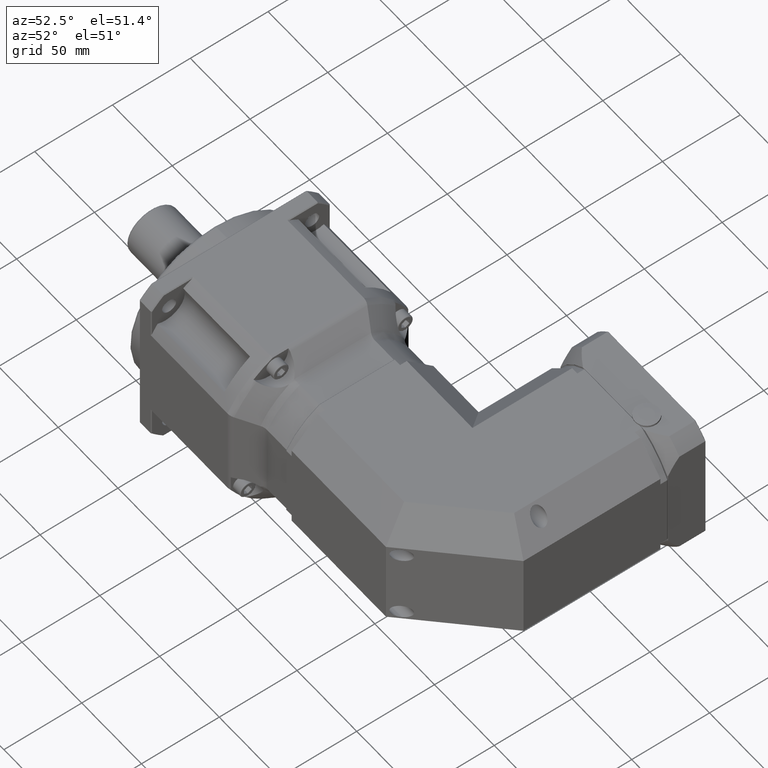
[diagram: clean part render]
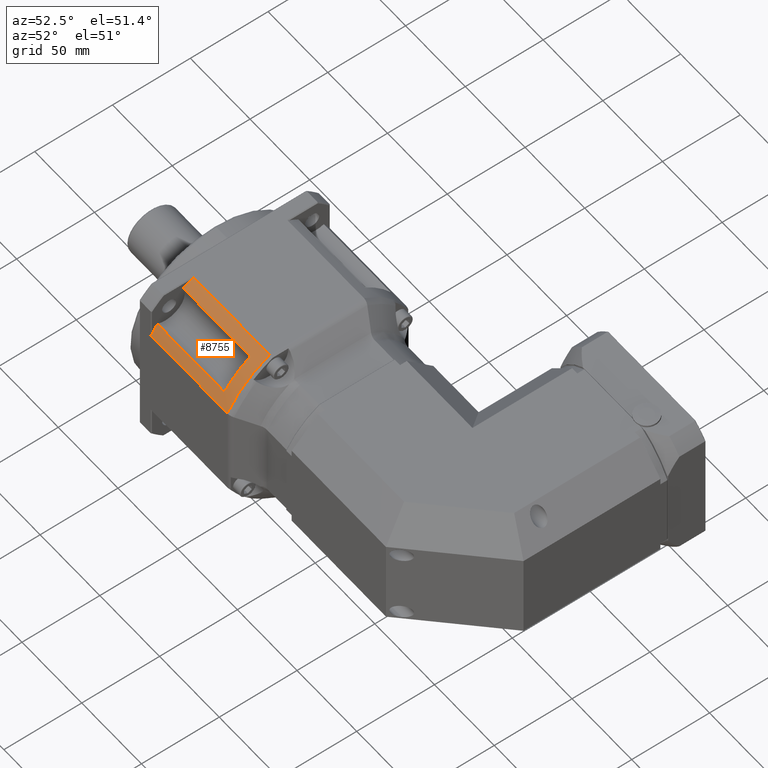
[diagram: same view with one face highlighted and labeled with its STEP entity id]
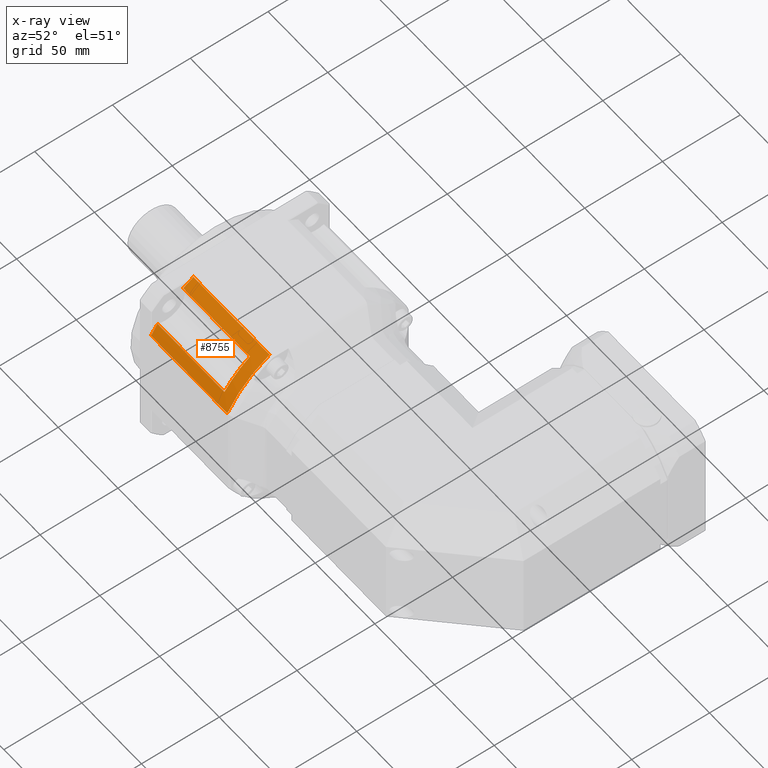
[diagram: x-ray of the same camera — body ghosted, the highlighted face saturated]
A machine part, auxiliary view. The second image highlights one B-rep face of the part: STEP entity #8755.
The next image is the same camera in x-ray: the body ghosted, the highlighted face saturated — about 0% of this face is hidden behind the body in this view.
In plain terms, the highlighted cylindrical surface (partial cylindrical patch) has radius 65 mm, axis along (-1, 0, 0).
Its self-contained STEP definition (entity closure, byte-faithful):
#62=B_SPLINE_CURVE_WITH_KNOTS('',3,(#13985,#13986,#13987,#13988,#13989),
 .UNSPECIFIED.,.F.,.F.,(4,1,4),(-0.00278572342313034,2.05708501763056,3.60042614189197),
 .UNSPECIFIED.);
#176=ELLIPSE('',#9566,91.9238815542512,65.);
#177=ELLIPSE('',#9567,91.923881554252,65.);
#439=LINE('',#13874,#902);
#461=LINE('',#13978,#924);
#462=LINE('',#13984,#925);
#463=LINE('',#13995,#926);
#902=VECTOR('',#11073,64.261255285636);
#924=VECTOR('',#11135,56.);
#925=VECTOR('',#11140,64.261255285636);
#926=VECTOR('',#11145,56.);
#2089=CYLINDRICAL_SURFACE('',#9564,65.);
#2397=FACE_OUTER_BOUND('',#3087,.T.);
#3087=EDGE_LOOP('',(#6740,#6741,#6742,#6743,#6744,#6745,#6746,#6747,#6748,
#6749));
#3779=CIRCLE('',#9565,65.);
#3780=CIRCLE('',#9568,65.);
#3781=CIRCLE('',#9569,65.);
#4288=VERTEX_POINT('',#13872);
#4289=VERTEX_POINT('',#13873);
#4324=VERTEX_POINT('',#13976);
#4325=VERTEX_POINT('',#13977);
#4326=VERTEX_POINT('',#13979);
#4327=VERTEX_POINT('',#13981);
#4328=VERTEX_POINT('',#13983);
#4329=VERTEX_POINT('',#13990);
#4330=VERTEX_POINT('',#13992);
#4331=VERTEX_POINT('',#13994);
#5198=EDGE_CURVE('',#4288,#4289,#439,.T.);
#5240=EDGE_CURVE('',#4324,#4325,#461,.T.);
#5241=EDGE_CURVE('',#4325,#4326,#3779,.T.);
#5242=EDGE_CURVE('',#4327,#4326,#176,.F.);
#5243=EDGE_CURVE('',#4328,#4327,#462,.T.);
#5244=EDGE_CURVE('',#4289,#4328,#62,.T.);
#5245=EDGE_CURVE('',#4329,#4288,#177,.F.);
#5246=EDGE_CURVE('',#4329,#4330,#3780,.T.);
#5247=EDGE_CURVE('',#4330,#4331,#463,.T.);
#5248=EDGE_CURVE('',#4324,#4331,#3781,.T.);
#6740=ORIENTED_EDGE('',*,*,#5240,.T.);
#6741=ORIENTED_EDGE('',*,*,#5241,.T.);
#6742=ORIENTED_EDGE('',*,*,#5242,.F.);
#6743=ORIENTED_EDGE('',*,*,#5243,.F.);
#6744=ORIENTED_EDGE('',*,*,#5244,.F.);
#6745=ORIENTED_EDGE('',*,*,#5198,.F.);
#6746=ORIENTED_EDGE('',*,*,#5245,.F.);
#6747=ORIENTED_EDGE('',*,*,#5246,.T.);
#6748=ORIENTED_EDGE('',*,*,#5247,.T.);
#6749=ORIENTED_EDGE('',*,*,#5248,.F.);
#8755=ADVANCED_FACE('',(#2397),#2089,.T.);
#9564=AXIS2_PLACEMENT_3D('',#13975,#11133,#11134);
#9565=AXIS2_PLACEMENT_3D('',#13980,#11136,#11137);
#9566=AXIS2_PLACEMENT_3D('',#13982,#11138,#11139);
#9567=AXIS2_PLACEMENT_3D('',#13991,#11141,#11142);
#9568=AXIS2_PLACEMENT_3D('',#13993,#11143,#11144);
#9569=AXIS2_PLACEMENT_3D('',#13996,#11146,#11147);
#11073=DIRECTION('',(1.,-3.12250225675824E-16,-7.28688222839997E-17));
#11133=DIRECTION('center_axis',(-1.,3.12250225675824E-16,7.28688222839997E-17));
#11134=DIRECTION('ref_axis',(7.28688222839994E-17,-6.55725473919233E-16,
1.));
#11135=DIRECTION('',(-1.,3.12250225675824E-16,7.28688222839997E-17));
#11136=DIRECTION('center_axis',(1.,-3.12250225675824E-16,-7.28688222839997E-17));
#11137=DIRECTION('ref_axis',(7.28688222839994E-17,-6.55725473919233E-16,
1.));
#11138=DIRECTION('center_axis',(0.707106781186547,-0.707106781186548,-5.15193967579146E-16));
#11139=DIRECTION('ref_axis',(0.707106781186548,0.707106781186547,4.12141890830959E-16));
#11140=DIRECTION('',(-1.,3.12250225675824E-16,7.28688222839997E-17));
#11141=DIRECTION('center_axis',(0.707106781186541,-7.39074092813853E-16,
0.707106781186554));
#11142=DIRECTION('ref_axis',(-0.707106781186554,-2.42873677202642E-16,0.707106781186541));
#11143=DIRECTION('center_axis',(1.,-3.12250225675824E-16,-7.28688222839997E-17));
#11144=DIRECTION('ref_axis',(7.28688222839994E-17,-6.55725473919233E-16,
1.));
#11145=DIRECTION('',(1.,-3.12250225675824E-16,-7.28688222839997E-17));
#11146=DIRECTION('center_axis',(-1.,-7.30465753510197E-16,7.28688222839997E-17));
#11147=DIRECTION('ref_axis',(-7.28688222840003E-17,8.02309607639273E-16,
-1.));
#13872=CARTESIAN_POINT('',(-109.814563485638,5.74993286992617,135.875721489125));
#13873=CARTESIAN_POINT('',(-45.5533082000025,5.74993286992604,135.875721489125));
#13874=CARTESIAN_POINT('',(-53.3145634856383,5.74993286992616,135.875721489125));
#13975=CARTESIAN_POINT('Origin',(-53.3145634856383,36.0608220023815,78.375721489125));
#13976=CARTESIAN_POINT('',(-53.3145634856383,-17.3900612411021,115.362247150391));
#13977=CARTESIAN_POINT('',(-109.314563485638,-17.3900612411021,115.362247150391));
#13978=CARTESIAN_POINT('',(-53.3145634856383,-17.3900612411021,115.362247150391));
#13979=CARTESIAN_POINT('',(-109.314563485638,-20.9391779976185,109.616720192752));
#13980=CARTESIAN_POINT('Origin',(-109.314563485638,36.0608220023815,78.375721489125));
#13981=CARTESIAN_POINT('',(-109.814563485638,-21.4391779976185,108.68661062158));
#13982=CARTESIAN_POINT('Origin',(-52.3145634856383,36.0608220023815,78.375721489125));
#13983=CARTESIAN_POINT('',(-45.5533082000025,-21.4391779976185,108.68661062158));
#13984=CARTESIAN_POINT('',(-53.3145634856383,-21.4391779976185,108.68661062158));
#13985=CARTESIAN_POINT('Ctrl Pts',(-45.5533082000025,5.74993298967612,135.875721311127));
#13986=CARTESIAN_POINT('Ctrl Pts',(-45.553264421419,-0.830175360537853,
132.406975279886));
#13987=CARTESIAN_POINT('Ctrl Pts',(-45.5532316175438,-11.2861024812801,
124.344494419047));
#13988=CARTESIAN_POINT('Ctrl Pts',(-45.5532753992554,-18.8402686158731,
113.616722263933));
#13989=CARTESIAN_POINT('Ctrl Pts',(-45.5533082000025,-21.4391779068911,
108.686610591772));
#13990=CARTESIAN_POINT('',(-109.314563485638,4.81982329875492,135.375721489125));
#13991=CARTESIAN_POINT('Origin',(-52.3145634856373,36.0608220023815,78.375721489125));
#13992=CARTESIAN_POINT('',(-109.314563485638,-0.925703658884447,131.826604732609));
#13993=CARTESIAN_POINT('Origin',(-109.314563485638,36.0608220023815,78.375721489125));
#13994=CARTESIAN_POINT('',(-53.3145634856383,-0.925703658884429,131.826604732609));
#13995=CARTESIAN_POINT('',(-53.3145634856383,-0.925703658884429,131.826604732609));
#13996=CARTESIAN_POINT('Origin',(-53.3145634856385,36.0608220023815,78.375721489125));